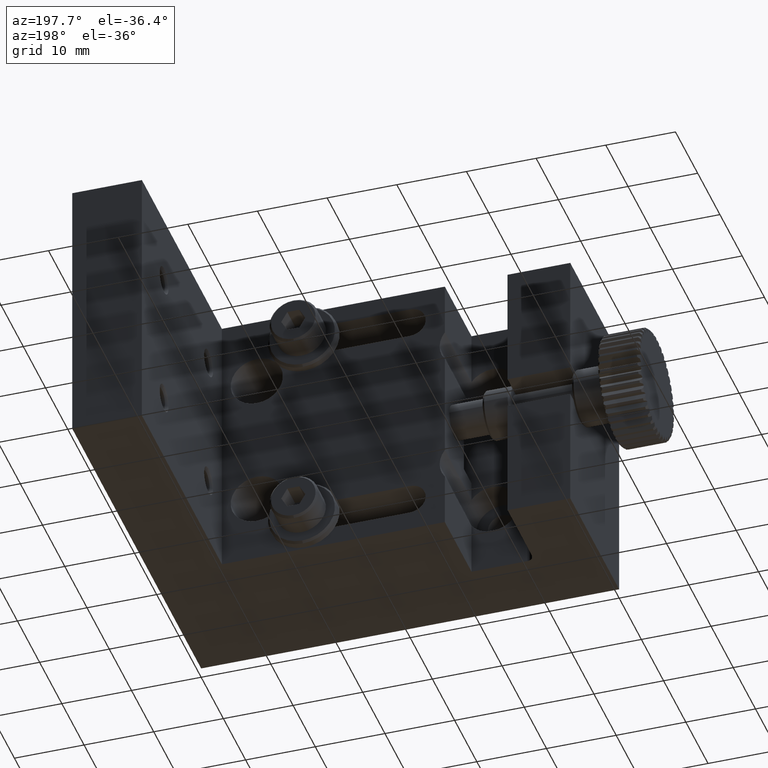
[diagram: clean part render]
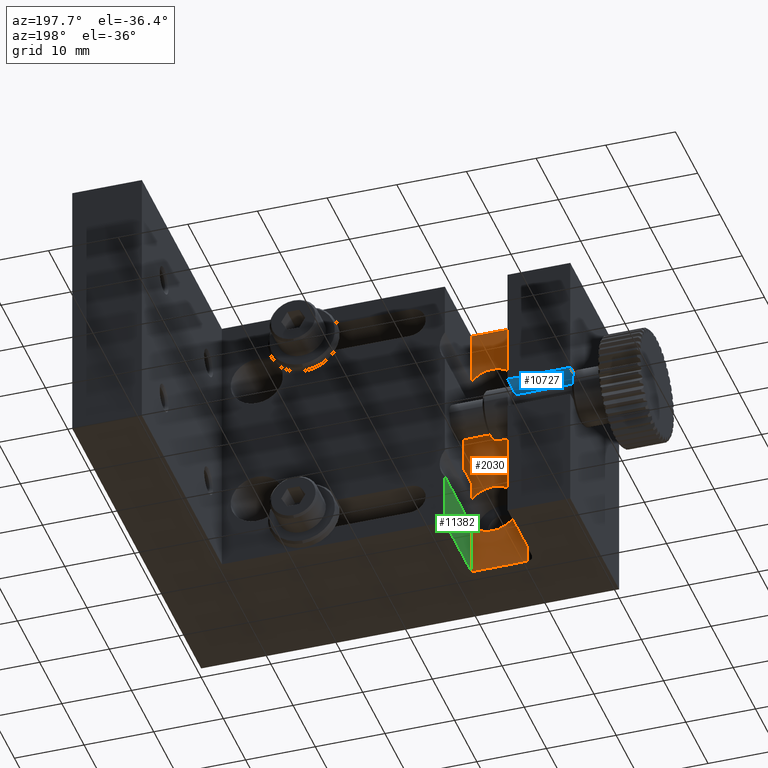
[diagram: same view with three faces highlighted in distinct colors, each labeled with its STEP entity id]
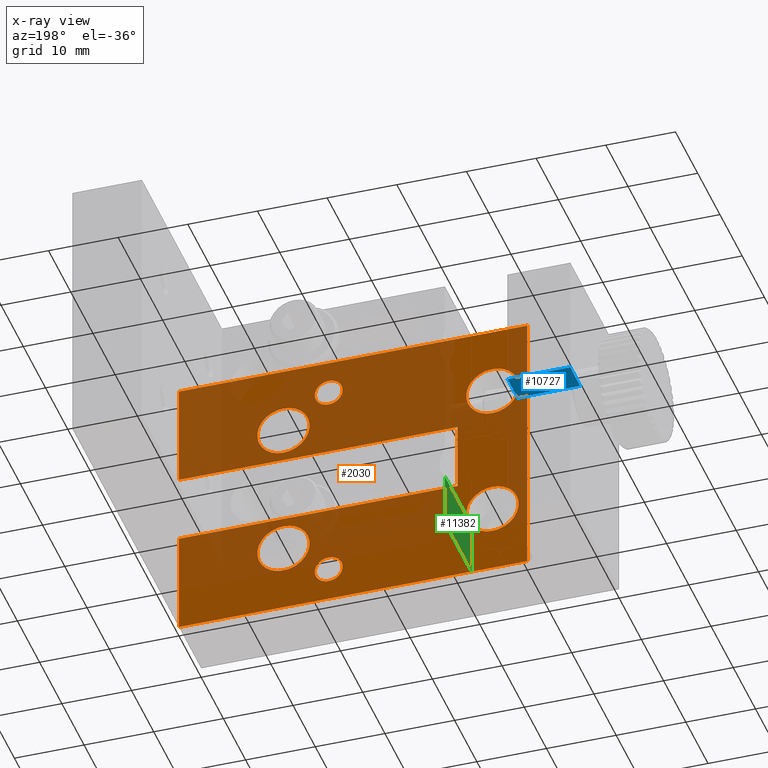
[diagram: x-ray of the same camera — body ghosted, the three highlighted faces saturated]
A machine part, auxiliary view with three faces highlighted in distinct colors.
The next image is the same camera in x-ray (body ghosted, the three faces saturated) — at least one of them is partly hidden behind the body in this view.
Their STEP definitions:

[orange] entity #2030 — the highlighted planar face has unit normal (0, 1, 0).
#140 = VECTOR ( 'NONE', #2277, 1000.000000000000000 ) ;
#292 = EDGE_CURVE ( 'NONE', #2651, #2992, #1936, .T. ) ;
#310 = PLANE ( 'NONE',  #9356 ) ;
#316 = DIRECTION ( 'NONE',  ( 0.000000000000000000, 0.000000000000000000, -1.000000000000000000 ) ) ;
#383 = VECTOR ( 'NONE', #12022, 1000.000000000000000 ) ;
#430 = FACE_BOUND ( 'NONE', #1754, .T. ) ;
#493 = ORIENTED_EDGE ( 'NONE', *, *, #4578, .T. ) ;
#786 = ORIENTED_EDGE ( 'NONE', *, *, #1051, .T. ) ;
#1018 = CARTESIAN_POINT ( 'NONE',  ( 38.50000000000000000, 9.999999999990905053, -35.00000000000000000 ) ) ;
#1051 = EDGE_CURVE ( 'NONE', #10791, #10791, #6351, .T. ) ;
#1081 = EDGE_CURVE ( 'NONE', #7803, #7803, #12563, .T. ) ;
#1366 = VECTOR ( 'NONE', #5800, 1000.000000000000000 ) ;
#1370 = DIRECTION ( 'NONE',  ( 0.000000000000000000, 0.000000000000000000, 1.000000000000000000 ) ) ;
#1441 = FACE_BOUND ( 'NONE', #2787, .T. ) ;
#1637 = CARTESIAN_POINT ( 'NONE',  ( 38.50000000000000000, 9.999999999990905053, -2.999999999985902832 ) ) ;
#1712 = CARTESIAN_POINT ( 'NONE',  ( 60.00000000000000000, 10.00000000000000000, -25.00000000000000000 ) ) ;
#1754 = EDGE_LOOP ( 'NONE', ( #786 ) ) ;
#1774 = EDGE_CURVE ( 'NONE', #2651, #8953, #11838, .T. ) ;
#1844 = ORIENTED_EDGE ( 'NONE', *, *, #1081, .T. ) ;
#1936 = LINE ( 'NONE', #3755, #8034 ) ;
#1975 = VERTEX_POINT ( 'NONE', #6068 ) ;
#1982 = CARTESIAN_POINT ( 'NONE',  ( 20.00000000000000355, 10.00000000000000000, -25.00000000000000000 ) ) ;
#2030 = ADVANCED_FACE ( 'NONE', ( #10665, #430, #1441, #4538, #12432, #12623, #12685 ), #310, .T. ) ;
#2277 = DIRECTION ( 'NONE',  ( -1.000000000000000000, -0.000000000000000000, 0.000000000000000000 ) ) ;
#2383 = DIRECTION ( 'NONE',  ( 0.000000000000000000, -1.000000000000000000, -0.000000000000000000 ) ) ;
#2392 = DIRECTION ( 'NONE',  ( 0.000000000000000000, -0.000000000000000000, 1.000000000000000000 ) ) ;
#2431 = EDGE_LOOP ( 'NONE', ( #11925 ) ) ;
#2641 = DIRECTION ( 'NONE',  ( 0.000000000000000000, -1.000000000000000000, 0.000000000000000000 ) ) ;
#2651 = VERTEX_POINT ( 'NONE', #2884 ) ;
#2739 = ORIENTED_EDGE ( 'NONE', *, *, #3232, .T. ) ;
#2787 = EDGE_LOOP ( 'NONE', ( #1844 ) ) ;
#2851 = CIRCLE ( 'NONE', #5430, 3.750000000000000000 ) ;
#2884 = CARTESIAN_POINT ( 'NONE',  ( 60.00000000000000000, 10.00000000000000000, -40.00000000000000000 ) ) ;
#2992 = VERTEX_POINT ( 'NONE', #3526 ) ;
#3232 = EDGE_CURVE ( 'NONE', #12823, #5873, #8211, .T. ) ;
#3375 = CARTESIAN_POINT ( 'NONE',  ( 10.00000000000000000, 10.00000000000000000, 0.000000000000000000 ) ) ;
#3465 = DIRECTION ( 'NONE',  ( 0.000000000000000000, -1.000000000000000000, 0.000000000000000000 ) ) ;
#3470 = CARTESIAN_POINT ( 'NONE',  ( 60.00000000000000000, 10.00000000000000000, -15.00000000000000000 ) ) ;
#3526 = CARTESIAN_POINT ( 'NONE',  ( 60.00000000000000000, 10.00000000000000000, -25.00000000000000000 ) ) ;
#3706 = VECTOR ( 'NONE', #9581, 1000.000000000000000 ) ;
#3755 = CARTESIAN_POINT ( 'NONE',  ( 60.00000000000000000, 10.00000000000000000, -40.00000000000000000 ) ) ;
#3826 = VERTEX_POINT ( 'NONE', #12868 ) ;
#3861 = DIRECTION ( 'NONE',  ( 0.000000000000000000, -1.000000000000000000, 0.000000000000000000 ) ) ;
#3970 = EDGE_LOOP ( 'NONE', ( #493 ) ) ;
#4013 = ORIENTED_EDGE ( 'NONE', *, *, #1774, .T. ) ;
#4350 = EDGE_CURVE ( 'NONE', #8860, #8860, #8117, .T. ) ;
#4398 = ORIENTED_EDGE ( 'NONE', *, *, #7647, .F. ) ;
#4516 = CARTESIAN_POINT ( 'NONE',  ( 10.00000000000000178, 10.00000000000000000, 0.000000000000000000 ) ) ;
#4538 = FACE_BOUND ( 'NONE', #2431, .T. ) ;
#4578 = EDGE_CURVE ( 'NONE', #6940, #6940, #9408, .T. ) ;
#5133 = AXIS2_PLACEMENT_3D ( 'NONE', #6150, #7224, #10283 ) ;
#5188 = DIRECTION ( 'NONE',  ( 0.000000000000000000, 0.000000000000000000, 1.000000000000000000 ) ) ;
#5190 = ORIENTED_EDGE ( 'NONE', *, *, #13112, .F. ) ;
#5280 = CARTESIAN_POINT ( 'NONE',  ( 10.00000000000000178, 10.00000000000000000, -40.00000000000000000 ) ) ;
#5416 = ORIENTED_EDGE ( 'NONE', *, *, #11592, .T. ) ;
#5424 = CARTESIAN_POINT ( 'NONE',  ( 45.00000000000000000, 10.00000000000000000, -10.00000000000000000 ) ) ;
#5430 = AXIS2_PLACEMENT_3D ( 'NONE', #13111, #3861, #7949 ) ;
#5513 = CARTESIAN_POINT ( 'NONE',  ( 10.00000000000000178, 10.00000000000000000, -40.00000000000000000 ) ) ;
#5517 = DIRECTION ( 'NONE',  ( -1.000000000000000000, -0.000000000000000000, 0.000000000000000000 ) ) ;
#5536 = CARTESIAN_POINT ( 'NONE',  ( 60.00000000000000000, 10.00000000000000000, -40.00000000000000000 ) ) ;
#5592 = CARTESIAN_POINT ( 'NONE',  ( 38.50000000000000000, 9.999999999990905053, -32.99999999995861799 ) ) ;
#5598 = EDGE_LOOP ( 'NONE', ( #11032, #4398, #5190, #8821, #2739, #10227, #6062, #4013 ) ) ;
#5710 = EDGE_LOOP ( 'NONE', ( #8900 ) ) ;
#5733 = AXIS2_PLACEMENT_3D ( 'NONE', #1018, #9459, #5188 ) ;
#5800 = DIRECTION ( 'NONE',  ( 1.000000000000000000, 0.000000000000000000, -0.000000000000000000 ) ) ;
#5820 = DIRECTION ( 'NONE',  ( -1.000000000000000000, -0.000000000000000000, 0.000000000000000000 ) ) ;
#5873 = VERTEX_POINT ( 'NONE', #1982 ) ;
#6062 = ORIENTED_EDGE ( 'NONE', *, *, #292, .F. ) ;
#6068 = CARTESIAN_POINT ( 'NONE',  ( 15.00000000000000000, 10.00000000000000000, -13.75000000000000000 ) ) ;
#6116 = CIRCLE ( 'NONE', #10779, 3.750000000000000000 ) ;
#6150 = CARTESIAN_POINT ( 'NONE',  ( 45.00000000000000000, 10.00000000000000000, -30.00000000000000000 ) ) ;
#6266 = CARTESIAN_POINT ( 'NONE',  ( 45.00000000000000000, 10.00000000000000000, -13.75000000000000000 ) ) ;
#6351 = CIRCLE ( 'NONE', #11499, 2.000000000014097168 ) ;
#6468 = VERTEX_POINT ( 'NONE', #6266 ) ;
#6940 = VERTEX_POINT ( 'NONE', #9000 ) ;
#7159 = LINE ( 'NONE', #12297, #10793 ) ;
#7224 = DIRECTION ( 'NONE',  ( 0.000000000000000000, -1.000000000000000000, 0.000000000000000000 ) ) ;
#7497 = AXIS2_PLACEMENT_3D ( 'NONE', #7801, #2641, #10933 ) ;
#7598 = VERTEX_POINT ( 'NONE', #4516 ) ;
#7647 = EDGE_CURVE ( 'NONE', #10175, #7598, #9466, .T. ) ;
#7801 = CARTESIAN_POINT ( 'NONE',  ( 15.00000000000000000, 10.00000000000000000, -30.00000000000000000 ) ) ;
#7803 = VERTEX_POINT ( 'NONE', #5592 ) ;
#7857 = VECTOR ( 'NONE', #5820, 1000.000000000000000 ) ;
#7933 = VECTOR ( 'NONE', #5517, 1000.000000000000000 ) ;
#7949 = DIRECTION ( 'NONE',  ( 0.000000000000000000, 0.000000000000000000, -1.000000000000000000 ) ) ;
#8034 = VECTOR ( 'NONE', #12796, 1000.000000000000000 ) ;
#8117 = CIRCLE ( 'NONE', #5133, 3.750000000000003553 ) ;
#8211 = LINE ( 'NONE', #12291, #383 ) ;
#8821 = ORIENTED_EDGE ( 'NONE', *, *, #12718, .T. ) ;
#8860 = VERTEX_POINT ( 'NONE', #12948 ) ;
#8900 = ORIENTED_EDGE ( 'NONE', *, *, #4350, .T. ) ;
#8953 = VERTEX_POINT ( 'NONE', #5280 ) ;
#9000 = CARTESIAN_POINT ( 'NONE',  ( 15.00000000000000000, 10.00000000000000000, -33.75000000000000000 ) ) ;
#9356 = AXIS2_PLACEMENT_3D ( 'NONE', #5536, #9424, #2392 ) ;
#9408 = CIRCLE ( 'NONE', #7497, 3.750000000000003553 ) ;
#9424 = DIRECTION ( 'NONE',  ( 0.000000000000000000, 1.000000000000000000, 0.000000000000000000 ) ) ;
#9459 = DIRECTION ( 'NONE',  ( 0.000000000000000000, -1.000000000000000000, -0.000000000000000000 ) ) ;
#9466 = LINE ( 'NONE', #3375, #7933 ) ;
#9581 = DIRECTION ( 'NONE',  ( 0.000000000000000000, -0.000000000000000000, 1.000000000000000000 ) ) ;
#9903 = EDGE_CURVE ( 'NONE', #1975, #1975, #2851, .T. ) ;
#10024 = CARTESIAN_POINT ( 'NONE',  ( 10.00000000000000000, 10.00000000000000000, -40.00000000000000000 ) ) ;
#10102 = EDGE_LOOP ( 'NONE', ( #5416 ) ) ;
#10175 = VERTEX_POINT ( 'NONE', #13148 ) ;
#10227 = ORIENTED_EDGE ( 'NONE', *, *, #10664, .T. ) ;
#10283 = DIRECTION ( 'NONE',  ( 0.000000000000000000, 0.000000000000000000, -1.000000000000000000 ) ) ;
#10336 = EDGE_CURVE ( 'NONE', #8953, #7598, #11599, .T. ) ;
#10664 = EDGE_CURVE ( 'NONE', #5873, #2992, #10865, .T. ) ;
#10665 = FACE_OUTER_BOUND ( 'NONE', #5598, .T. ) ;
#10779 = AXIS2_PLACEMENT_3D ( 'NONE', #5424, #3465, #316 ) ;
#10791 = VERTEX_POINT ( 'NONE', #1637 ) ;
#10793 = VECTOR ( 'NONE', #11294, 1000.000000000000000 ) ;
#10865 = LINE ( 'NONE', #1712, #1366 ) ;
#10933 = DIRECTION ( 'NONE',  ( 0.000000000000000000, 0.000000000000000000, -1.000000000000000000 ) ) ;
#11032 = ORIENTED_EDGE ( 'NONE', *, *, #10336, .T. ) ;
#11294 = DIRECTION ( 'NONE',  ( -0.000000000000000000, -0.000000000000000000, 1.000000000000000000 ) ) ;
#11499 = AXIS2_PLACEMENT_3D ( 'NONE', #11550, #2383, #1370 ) ;
#11508 = LINE ( 'NONE', #3470, #140 ) ;
#11550 = CARTESIAN_POINT ( 'NONE',  ( 38.50000000000000000, 9.999999999990905053, -5.000000000000000000 ) ) ;
#11592 = EDGE_CURVE ( 'NONE', #6468, #6468, #6116, .T. ) ;
#11599 = LINE ( 'NONE', #5513, #3706 ) ;
#11838 = LINE ( 'NONE', #10024, #7857 ) ;
#11925 = ORIENTED_EDGE ( 'NONE', *, *, #9903, .T. ) ;
#11960 = CARTESIAN_POINT ( 'NONE',  ( 20.00000000000000355, 10.00000000000000000, -15.00000000000000000 ) ) ;
#12022 = DIRECTION ( 'NONE',  ( -0.000000000000000000, 0.000000000000000000, -1.000000000000000000 ) ) ;
#12291 = CARTESIAN_POINT ( 'NONE',  ( 20.00000000000000355, 10.00000000000000000, -40.00000000000000000 ) ) ;
#12297 = CARTESIAN_POINT ( 'NONE',  ( 60.00000000000000000, 10.00000000000000000, -40.00000000000000000 ) ) ;
#12432 = FACE_BOUND ( 'NONE', #3970, .T. ) ;
#12563 = CIRCLE ( 'NONE', #5733, 2.000000000041385562 ) ;
#12623 = FACE_BOUND ( 'NONE', #5710, .T. ) ;
#12685 = FACE_BOUND ( 'NONE', #10102, .T. ) ;
#12718 = EDGE_CURVE ( 'NONE', #3826, #12823, #11508, .T. ) ;
#12796 = DIRECTION ( 'NONE',  ( -0.000000000000000000, -0.000000000000000000, 1.000000000000000000 ) ) ;
#12823 = VERTEX_POINT ( 'NONE', #11960 ) ;
#12868 = CARTESIAN_POINT ( 'NONE',  ( 60.00000000000000000, 10.00000000000000000, -15.00000000000000000 ) ) ;
#12948 = CARTESIAN_POINT ( 'NONE',  ( 45.00000000000000000, 10.00000000000000000, -33.75000000000000000 ) ) ;
#13111 = CARTESIAN_POINT ( 'NONE',  ( 15.00000000000000000, 10.00000000000000000, -10.00000000000000000 ) ) ;
#13112 = EDGE_CURVE ( 'NONE', #3826, #10175, #7159, .T. ) ;
#13148 = CARTESIAN_POINT ( 'NONE',  ( 60.00000000000000000, 10.00000000000000000, 0.000000000000000000 ) ) ;

[blue] entity #10727 — the highlighted planar face has unit normal (0, 0, -1).
#1180 = LINE ( 'NONE', #1313, #7004 ) ;
#1313 = CARTESIAN_POINT ( 'NONE',  ( 9.000000000000001776, 22.00000000000000000, -17.75000000000000355 ) ) ;
#1804 = CARTESIAN_POINT ( 'NONE',  ( 9.000000000000001776, 17.50000000000000000, -17.75000000000000355 ) ) ;
#1806 = CARTESIAN_POINT ( 'NONE',  ( 0.000000000000000000, 22.00000000000000000, -17.75000000000000355 ) ) ;
#1871 = DIRECTION ( 'NONE',  ( -1.000000000000000000, 0.000000000000000000, 0.000000000000000000 ) ) ;
#2489 = VECTOR ( 'NONE', #7058, 1000.000000000000000 ) ;
#2585 = CARTESIAN_POINT ( 'NONE',  ( 0.000000000000000000, 17.50000000000000000, -17.75000000000000355 ) ) ;
#2679 = VECTOR ( 'NONE', #1871, 1000.000000000000000 ) ;
#2810 = LINE ( 'NONE', #1806, #8409 ) ;
#3092 = ORIENTED_EDGE ( 'NONE', *, *, #9476, .F. ) ;
#3332 = DIRECTION ( 'NONE',  ( 1.000000000000000000, -0.000000000000000000, 0.000000000000000000 ) ) ;
#3844 = DIRECTION ( 'NONE',  ( -1.000000000000000000, 0.000000000000000000, -0.000000000000000000 ) ) ;
#3918 = PLANE ( 'NONE',  #4800 ) ;
#4112 = ORIENTED_EDGE ( 'NONE', *, *, #12253, .F. ) ;
#4800 = AXIS2_PLACEMENT_3D ( 'NONE', #11139, #4929, #3844 ) ;
#4929 = DIRECTION ( 'NONE',  ( 0.000000000000000000, 0.000000000000000000, -1.000000000000000000 ) ) ;
#4987 = VERTEX_POINT ( 'NONE', #9179 ) ;
#5656 = VERTEX_POINT ( 'NONE', #2585 ) ;
#6075 = ORIENTED_EDGE ( 'NONE', *, *, #11353, .T. ) ;
#6316 = CARTESIAN_POINT ( 'NONE',  ( 9.000000000000001776, 11.00000000000000000, -17.75000000000000355 ) ) ;
#6968 = LINE ( 'NONE', #11236, #2679 ) ;
#7004 = VECTOR ( 'NONE', #3332, 1000.000000000000000 ) ;
#7058 = DIRECTION ( 'NONE',  ( -0.000000000000000000, 1.000000000000000000, 0.000000000000000000 ) ) ;
#8084 = CARTESIAN_POINT ( 'NONE',  ( 9.000000000000001776, 22.00000000000000355, -17.75000000000000355 ) ) ;
#8200 = FACE_OUTER_BOUND ( 'NONE', #8734, .T. ) ;
#8409 = VECTOR ( 'NONE', #9972, 1000.000000000000000 ) ;
#8721 = ORIENTED_EDGE ( 'NONE', *, *, #13231, .T. ) ;
#8734 = EDGE_LOOP ( 'NONE', ( #4112, #6075, #3092, #8721 ) ) ;
#8745 = VERTEX_POINT ( 'NONE', #8084 ) ;
#9179 = CARTESIAN_POINT ( 'NONE',  ( 0.000000000000000000, 22.00000000000000355, -17.75000000000000355 ) ) ;
#9476 = EDGE_CURVE ( 'NONE', #4987, #5656, #2810, .T. ) ;
#9972 = DIRECTION ( 'NONE',  ( -0.000000000000000000, -1.000000000000000000, 0.000000000000000000 ) ) ;
#10181 = LINE ( 'NONE', #6316, #2489 ) ;
#10727 = ADVANCED_FACE ( 'NONE', ( #8200 ), #3918, .T. ) ;
#11139 = CARTESIAN_POINT ( 'NONE',  ( 9.000000000000001776, 22.00000000000000000, -17.75000000000000355 ) ) ;
#11236 = CARTESIAN_POINT ( 'NONE',  ( 9.000000000000001776, 17.50000000000000000, -17.75000000000000355 ) ) ;
#11353 = EDGE_CURVE ( 'NONE', #12431, #5656, #6968, .T. ) ;
#12253 = EDGE_CURVE ( 'NONE', #12431, #8745, #10181, .T. ) ;
#12431 = VERTEX_POINT ( 'NONE', #1804 ) ;
#13231 = EDGE_CURVE ( 'NONE', #4987, #8745, #1180, .T. ) ;

[green] entity #11382 — the highlighted planar face has unit normal (1, 0, 0).
#45 = LINE ( 'NONE', #12301, #2098 ) ;
#418 = EDGE_CURVE ( 'NONE', #2510, #12987, #3080, .T. ) ;
#687 = VERTEX_POINT ( 'NONE', #3348 ) ;
#922 = FACE_OUTER_BOUND ( 'NONE', #1304, .T. ) ;
#1304 = EDGE_LOOP ( 'NONE', ( #12107, #2473, #6890, #6754 ) ) ;
#1912 = EDGE_CURVE ( 'NONE', #687, #3905, #45, .T. ) ;
#1934 = DIRECTION ( 'NONE',  ( 1.000000000000000000, 0.000000000000000000, 4.072182490775210044E-16 ) ) ;
#2098 = VECTOR ( 'NONE', #2940, 1000.000000000000000 ) ;
#2422 = VECTOR ( 'NONE', #5330, 1000.000000000000000 ) ;
#2473 = ORIENTED_EDGE ( 'NONE', *, *, #11915, .F. ) ;
#2510 = VERTEX_POINT ( 'NONE', #8705 ) ;
#2692 = VECTOR ( 'NONE', #9303, 1000.000000000000000 ) ;
#2940 = DIRECTION ( 'NONE',  ( -0.000000000000000000, 1.000000000000000000, -0.000000000000000000 ) ) ;
#3080 = LINE ( 'NONE', #7369, #2692 ) ;
#3348 = CARTESIAN_POINT ( 'NONE',  ( 18.00000000000001066, 10.00000000000000000, -32.24999999999998579 ) ) ;
#3550 = CARTESIAN_POINT ( 'NONE',  ( 18.00000000000001421, 10.00000000000000000, -30.00000000000000000 ) ) ;
#3905 = VERTEX_POINT ( 'NONE', #13070 ) ;
#4265 = LINE ( 'NONE', #10708, #5264 ) ;
#5264 = VECTOR ( 'NONE', #7482, 1000.000000000000000 ) ;
#5330 = DIRECTION ( 'NONE',  ( 0.000000000000000000, -0.000000000000000000, 1.000000000000000000 ) ) ;
#6754 = ORIENTED_EDGE ( 'NONE', *, *, #9289, .T. ) ;
#6890 = ORIENTED_EDGE ( 'NONE', *, *, #418, .T. ) ;
#7040 = DIRECTION ( 'NONE',  ( 4.072182490775210044E-16, 0.000000000000000000, -1.000000000000000000 ) ) ;
#7369 = CARTESIAN_POINT ( 'NONE',  ( 18.00000000000001421, 22.00000000000000000, -40.00000000000000711 ) ) ;
#7482 = DIRECTION ( 'NONE',  ( -4.072182490775210044E-16, -0.000000000000000000, 1.000000000000000000 ) ) ;
#8096 = PLANE ( 'NONE',  #8875 ) ;
#8335 = LINE ( 'NONE', #3550, #2422 ) ;
#8705 = CARTESIAN_POINT ( 'NONE',  ( 18.00000000000001421, 22.00000000000000355, -40.00000000000000711 ) ) ;
#8875 = AXIS2_PLACEMENT_3D ( 'NONE', #11170, #1934, #7040 ) ;
#9289 = EDGE_CURVE ( 'NONE', #12987, #687, #8335, .T. ) ;
#9303 = DIRECTION ( 'NONE',  ( -0.000000000000000000, -1.000000000000000000, 0.000000000000000000 ) ) ;
#10708 = CARTESIAN_POINT ( 'NONE',  ( 18.00000000000001066, 22.00000000000000000, -40.00000000000000000 ) ) ;
#11170 = CARTESIAN_POINT ( 'NONE',  ( 18.00000000000001066, 22.00000000000000000, -40.00000000000000000 ) ) ;
#11382 = ADVANCED_FACE ( 'NONE', ( #922 ), #8096, .F. ) ;
#11915 = EDGE_CURVE ( 'NONE', #2510, #3905, #4265, .T. ) ;
#12104 = CARTESIAN_POINT ( 'NONE',  ( 18.00000000000001421, 10.00000000000000000, -40.00000000000000711 ) ) ;
#12107 = ORIENTED_EDGE ( 'NONE', *, *, #1912, .T. ) ;
#12301 = CARTESIAN_POINT ( 'NONE',  ( 18.00000000000000355, 22.00000000000000000, -32.25000000000000000 ) ) ;
#12987 = VERTEX_POINT ( 'NONE', #12104 ) ;
#13070 = CARTESIAN_POINT ( 'NONE',  ( 18.00000000000000355, 22.00000000000000000, -32.25000000000000000 ) ) ;